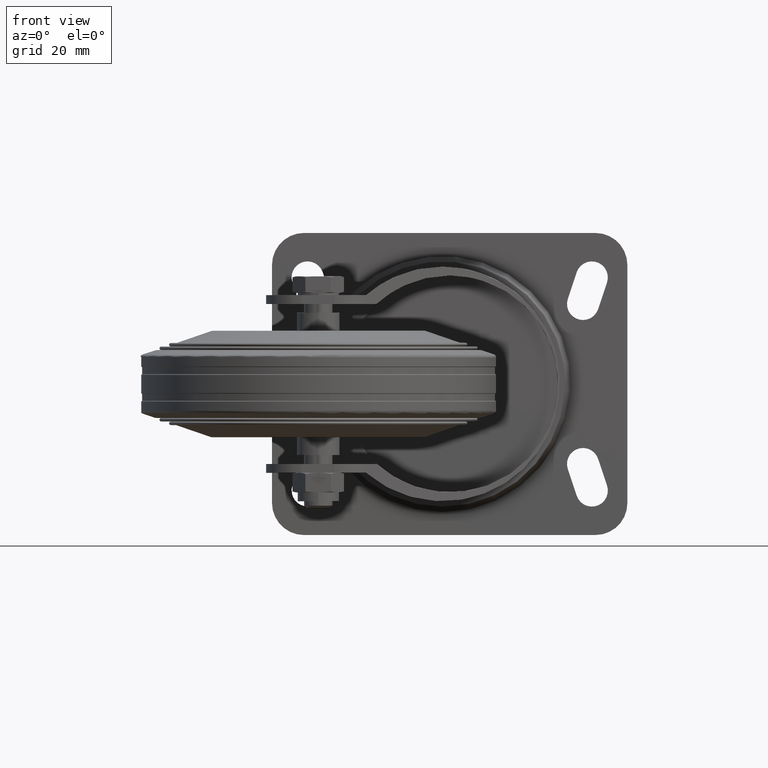
[diagram: clean part render]
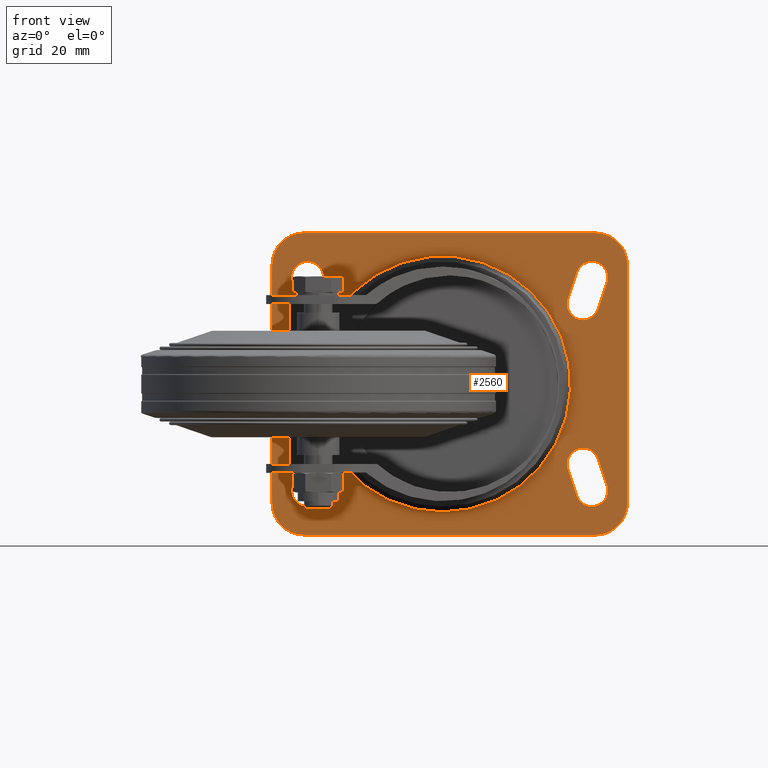
[diagram: same view with one face highlighted and labeled with its STEP entity id]
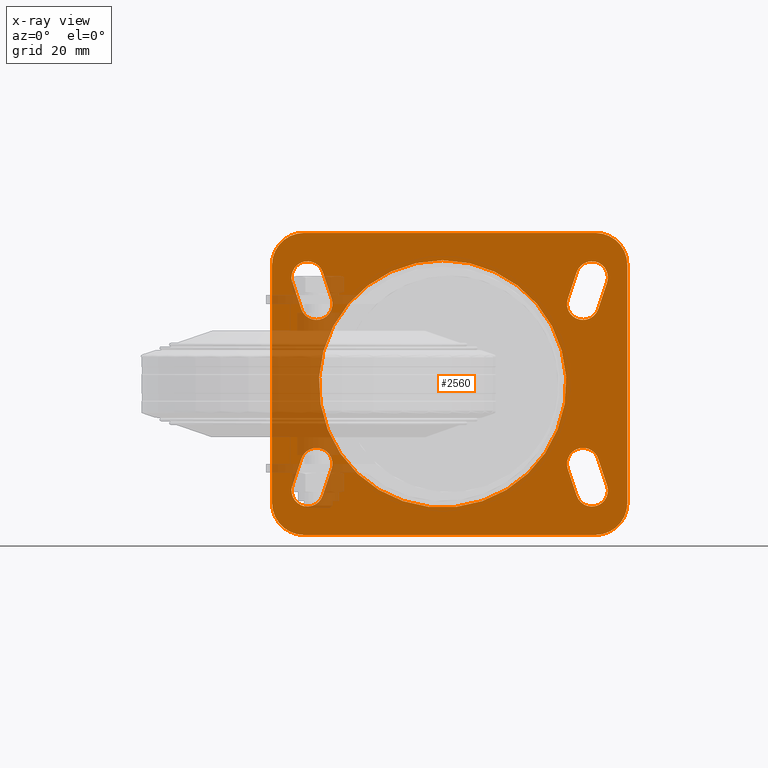
[diagram: x-ray of the same camera — body ghosted, the highlighted face saturated]
A machine part, front view. The second image highlights one B-rep face of the part: STEP entity #2560.
The next image is the same camera in x-ray: the body ghosted, the highlighted face saturated — about 16% of this face is hidden behind the body in this view.
In plain terms, the highlighted planar face has unit normal (0, 1, 0).
Its self-contained STEP definition (entity closure, byte-faithful):
#122=FACE_BOUND('',#779,.T.);
#123=FACE_BOUND('',#780,.T.);
#124=FACE_BOUND('',#781,.T.);
#125=FACE_BOUND('',#782,.T.);
#126=FACE_BOUND('',#783,.T.);
#192=PLANE('',#2923);
#274=LINE('',#4390,#401);
#278=LINE('',#4402,#405);
#282=LINE('',#4414,#409);
#286=LINE('',#4426,#413);
#290=LINE('',#4435,#417);
#294=LINE('',#4447,#421);
#298=LINE('',#4456,#425);
#302=LINE('',#4468,#429);
#306=LINE('',#4477,#433);
#310=LINE('',#4489,#437);
#314=LINE('',#4498,#441);
#318=LINE('',#4510,#445);
#401=VECTOR('',#3420,1000.);
#405=VECTOR('',#3432,1000.);
#409=VECTOR('',#3444,1000.);
#413=VECTOR('',#3456,1000.);
#417=VECTOR('',#3462,1000.);
#421=VECTOR('',#3474,1000.);
#425=VECTOR('',#3480,1000.);
#429=VECTOR('',#3492,1000.);
#433=VECTOR('',#3498,1000.);
#437=VECTOR('',#3510,1000.);
#441=VECTOR('',#3516,1000.);
#445=VECTOR('',#3528,1000.);
#601=FACE_OUTER_BOUND('',#778,.T.);
#778=EDGE_LOOP('',(#2097,#2098,#2099,#2100,#2101,#2102,#2103,#2104));
#779=EDGE_LOOP('',(#2105));
#780=EDGE_LOOP('',(#2106,#2107,#2108,#2109));
#781=EDGE_LOOP('',(#2110,#2111,#2112,#2113));
#782=EDGE_LOOP('',(#2114,#2115,#2116,#2117));
#783=EDGE_LOOP('',(#2118,#2119,#2120,#2121));
#938=CIRCLE('',#2876,9.00000000000001);
#940=CIRCLE('',#2880,9.00000000000003);
#942=CIRCLE('',#2884,9.00000000000004);
#944=CIRCLE('',#2889,4.5);
#946=CIRCLE('',#2894,4.49999999999996);
#948=CIRCLE('',#2899,4.5);
#950=CIRCLE('',#2904,4.5);
#952=CIRCLE('',#2908,4.5);
#954=CIRCLE('',#2911,4.49999999999996);
#957=CIRCLE('',#2916,4.5);
#959=CIRCLE('',#2919,4.5);
#961=CIRCLE('',#2922,9.00000000000001);
#962=CIRCLE('',#2924,34.8);
#1217=VERTEX_POINT('',#4387);
#1218=VERTEX_POINT('',#4389);
#1220=VERTEX_POINT('',#4395);
#1222=VERTEX_POINT('',#4401);
#1224=VERTEX_POINT('',#4407);
#1226=VERTEX_POINT('',#4413);
#1228=VERTEX_POINT('',#4419);
#1230=VERTEX_POINT('',#4425);
#1233=VERTEX_POINT('',#4432);
#1234=VERTEX_POINT('',#4434);
#1236=VERTEX_POINT('',#4440);
#1238=VERTEX_POINT('',#4446);
#1241=VERTEX_POINT('',#4453);
#1242=VERTEX_POINT('',#4455);
#1244=VERTEX_POINT('',#4461);
#1246=VERTEX_POINT('',#4467);
#1249=VERTEX_POINT('',#4474);
#1250=VERTEX_POINT('',#4476);
#1252=VERTEX_POINT('',#4482);
#1254=VERTEX_POINT('',#4488);
#1257=VERTEX_POINT('',#4495);
#1258=VERTEX_POINT('',#4497);
#1260=VERTEX_POINT('',#4503);
#1262=VERTEX_POINT('',#4509);
#1265=VERTEX_POINT('',#4562);
#1501=EDGE_CURVE('',#1217,#1218,#274,.T.);
#1504=EDGE_CURVE('',#1218,#1220,#938,.T.);
#1507=EDGE_CURVE('',#1220,#1222,#278,.T.);
#1510=EDGE_CURVE('',#1222,#1224,#940,.T.);
#1513=EDGE_CURVE('',#1224,#1226,#282,.T.);
#1516=EDGE_CURVE('',#1226,#1228,#942,.T.);
#1519=EDGE_CURVE('',#1228,#1230,#286,.T.);
#1523=EDGE_CURVE('',#1234,#1233,#290,.T.);
#1526=EDGE_CURVE('',#1236,#1234,#944,.T.);
#1529=EDGE_CURVE('',#1238,#1236,#294,.T.);
#1533=EDGE_CURVE('',#1242,#1241,#298,.T.);
#1536=EDGE_CURVE('',#1244,#1242,#946,.T.);
#1539=EDGE_CURVE('',#1246,#1244,#302,.T.);
#1543=EDGE_CURVE('',#1250,#1249,#306,.T.);
#1546=EDGE_CURVE('',#1252,#1250,#948,.T.);
#1549=EDGE_CURVE('',#1254,#1252,#310,.T.);
#1553=EDGE_CURVE('',#1258,#1257,#314,.T.);
#1556=EDGE_CURVE('',#1260,#1258,#950,.T.);
#1559=EDGE_CURVE('',#1262,#1260,#318,.T.);
#1562=EDGE_CURVE('',#1233,#1238,#952,.T.);
#1564=EDGE_CURVE('',#1241,#1246,#954,.T.);
#1570=EDGE_CURVE('',#1249,#1254,#957,.T.);
#1572=EDGE_CURVE('',#1257,#1262,#959,.T.);
#1574=EDGE_CURVE('',#1230,#1217,#961,.T.);
#1575=EDGE_CURVE('',#1265,#1265,#962,.F.);
#2097=ORIENTED_EDGE('',*,*,#1501,.F.);
#2098=ORIENTED_EDGE('',*,*,#1574,.F.);
#2099=ORIENTED_EDGE('',*,*,#1519,.F.);
#2100=ORIENTED_EDGE('',*,*,#1516,.F.);
#2101=ORIENTED_EDGE('',*,*,#1513,.F.);
#2102=ORIENTED_EDGE('',*,*,#1510,.F.);
#2103=ORIENTED_EDGE('',*,*,#1507,.F.);
#2104=ORIENTED_EDGE('',*,*,#1504,.F.);
#2105=ORIENTED_EDGE('',*,*,#1575,.F.);
#2106=ORIENTED_EDGE('',*,*,#1553,.T.);
#2107=ORIENTED_EDGE('',*,*,#1572,.T.);
#2108=ORIENTED_EDGE('',*,*,#1559,.T.);
#2109=ORIENTED_EDGE('',*,*,#1556,.T.);
#2110=ORIENTED_EDGE('',*,*,#1543,.T.);
#2111=ORIENTED_EDGE('',*,*,#1570,.T.);
#2112=ORIENTED_EDGE('',*,*,#1549,.T.);
#2113=ORIENTED_EDGE('',*,*,#1546,.T.);
#2114=ORIENTED_EDGE('',*,*,#1533,.T.);
#2115=ORIENTED_EDGE('',*,*,#1564,.T.);
#2116=ORIENTED_EDGE('',*,*,#1539,.T.);
#2117=ORIENTED_EDGE('',*,*,#1536,.T.);
#2118=ORIENTED_EDGE('',*,*,#1523,.T.);
#2119=ORIENTED_EDGE('',*,*,#1562,.T.);
#2120=ORIENTED_EDGE('',*,*,#1529,.T.);
#2121=ORIENTED_EDGE('',*,*,#1526,.T.);
#2560=ADVANCED_FACE('',(#601,#122,#123,#124,#125,#126),#192,.F.);
#2876=AXIS2_PLACEMENT_3D('',#4396,#3426,#3427);
#2880=AXIS2_PLACEMENT_3D('',#4408,#3438,#3439);
#2884=AXIS2_PLACEMENT_3D('',#4420,#3450,#3451);
#2889=AXIS2_PLACEMENT_3D('',#4441,#3468,#3469);
#2894=AXIS2_PLACEMENT_3D('',#4462,#3486,#3487);
#2899=AXIS2_PLACEMENT_3D('',#4483,#3504,#3505);
#2904=AXIS2_PLACEMENT_3D('',#4504,#3522,#3523);
#2908=AXIS2_PLACEMENT_3D('',#4514,#3534,#3535);
#2911=AXIS2_PLACEMENT_3D('',#4517,#3540,#3541);
#2916=AXIS2_PLACEMENT_3D('',#4554,#3550,#3551);
#2919=AXIS2_PLACEMENT_3D('',#4557,#3556,#3557);
#2922=AXIS2_PLACEMENT_3D('',#4560,#3562,#3563);
#2923=AXIS2_PLACEMENT_3D('',#4561,#3564,#3565);
#2924=AXIS2_PLACEMENT_3D('',#4563,#3566,#3567);
#3420=DIRECTION('',(0.,0.,1.));
#3426=DIRECTION('center_axis',(0.,1.,0.));
#3427=DIRECTION('ref_axis',(1.,0.,0.));
#3432=DIRECTION('',(1.,0.,0.));
#3438=DIRECTION('center_axis',(0.,1.,0.));
#3439=DIRECTION('ref_axis',(1.,0.,0.));
#3444=DIRECTION('',(0.,0.,-1.));
#3450=DIRECTION('center_axis',(0.,1.,0.));
#3451=DIRECTION('ref_axis',(1.,0.,0.));
#3456=DIRECTION('',(-1.,0.,0.));
#3462=DIRECTION('',(-0.316227766016838,0.,0.948683298050514));
#3468=DIRECTION('center_axis',(0.,1.,0.));
#3469=DIRECTION('ref_axis',(1.,0.,0.));
#3474=DIRECTION('',(0.316227766016838,0.,-0.948683298050514));
#3480=DIRECTION('',(-0.316227766016838,0.,-0.948683298050514));
#3486=DIRECTION('center_axis',(0.,1.,0.));
#3487=DIRECTION('ref_axis',(1.,0.,0.));
#3492=DIRECTION('',(0.316227766016838,0.,0.948683298050514));
#3498=DIRECTION('',(-0.316227766016838,0.,-0.948683298050514));
#3504=DIRECTION('center_axis',(0.,1.,0.));
#3505=DIRECTION('ref_axis',(1.,0.,0.));
#3510=DIRECTION('',(0.316227766016838,0.,0.948683298050514));
#3516=DIRECTION('',(-0.316227766016838,0.,0.948683298050514));
#3522=DIRECTION('center_axis',(0.,1.,0.));
#3523=DIRECTION('ref_axis',(1.,0.,0.));
#3528=DIRECTION('',(0.316227766016838,0.,-0.948683298050514));
#3534=DIRECTION('center_axis',(0.,1.,0.));
#3535=DIRECTION('ref_axis',(1.,0.,0.));
#3540=DIRECTION('center_axis',(0.,1.,0.));
#3541=DIRECTION('ref_axis',(1.,0.,0.));
#3550=DIRECTION('center_axis',(0.,1.,0.));
#3551=DIRECTION('ref_axis',(1.,0.,0.));
#3556=DIRECTION('center_axis',(0.,1.,0.));
#3557=DIRECTION('ref_axis',(1.,0.,0.));
#3562=DIRECTION('center_axis',(0.,1.,0.));
#3563=DIRECTION('ref_axis',(1.,0.,0.));
#3564=DIRECTION('center_axis',(0.,1.,0.));
#3565=DIRECTION('ref_axis',(0.,0.,1.));
#3566=DIRECTION('center_axis',(0.,1.,0.));
#3567=DIRECTION('ref_axis',(0.,0.,1.));
#4387=CARTESIAN_POINT('',(-13.,75.5,-33.5));
#4389=CARTESIAN_POINT('',(-13.,75.5,33.5));
#4390=CARTESIAN_POINT('',(-13.,75.5,-33.5));
#4395=CARTESIAN_POINT('',(-4.,75.5,42.5));
#4396=CARTESIAN_POINT('Origin',(-3.99999999999999,75.5,33.5));
#4401=CARTESIAN_POINT('',(78.,75.5,42.5));
#4402=CARTESIAN_POINT('',(-4.,75.5,42.5));
#4407=CARTESIAN_POINT('',(87.,75.5,33.5));
#4408=CARTESIAN_POINT('Origin',(78.,75.5,33.5));
#4413=CARTESIAN_POINT('',(87.,75.5,-33.5));
#4414=CARTESIAN_POINT('',(87.,75.5,33.5));
#4419=CARTESIAN_POINT('',(78.,75.5,-42.5));
#4420=CARTESIAN_POINT('Origin',(78.,75.5,-33.5));
#4425=CARTESIAN_POINT('',(-4.,75.5,-42.5));
#4426=CARTESIAN_POINT('',(78.,75.5,-42.5));
#4432=CARTESIAN_POINT('',(70.2309251587727,75.5,-23.9230249470758));
#4434=CARTESIAN_POINT('',(72.7309251587727,75.5,-31.4230249470758));
#4435=CARTESIAN_POINT('',(72.7309251587727,75.5,-31.4230249470758));
#4440=CARTESIAN_POINT('',(81.2690748412273,75.5,-28.5769750529242));
#4441=CARTESIAN_POINT('Origin',(77.,75.5,-30.));
#4446=CARTESIAN_POINT('',(78.7690748412273,75.5,-21.0769750529242));
#4447=CARTESIAN_POINT('',(78.7690748412273,75.5,-21.0769750529242));
#4453=CARTESIAN_POINT('',(78.7690748412273,75.5,21.0769750529242));
#4455=CARTESIAN_POINT('',(81.2690748412273,75.5,28.5769750529243));
#4456=CARTESIAN_POINT('',(81.2690748412273,75.5,28.5769750529242));
#4461=CARTESIAN_POINT('',(72.7309251587727,75.5,31.4230249470758));
#4462=CARTESIAN_POINT('Origin',(77.,75.5,30.));
#4467=CARTESIAN_POINT('',(70.2309251587727,75.5,23.9230249470758));
#4468=CARTESIAN_POINT('',(70.2309251587727,75.5,23.9230249470758));
#4474=CARTESIAN_POINT('',(1.26907484122731,75.5,-31.4230249470758));
#4476=CARTESIAN_POINT('',(3.76907484122731,75.5,-23.9230249470758));
#4477=CARTESIAN_POINT('',(3.76907484122731,75.5,-23.9230249470758));
#4482=CARTESIAN_POINT('',(-4.76907484122731,75.5,-21.0769750529242));
#4483=CARTESIAN_POINT('Origin',(-0.50000005654593,75.5,-22.5000001696378));
#4488=CARTESIAN_POINT('',(-7.26907484122731,75.5,-28.5769750529242));
#4489=CARTESIAN_POINT('',(-7.26907484122731,75.5,-28.5769750529242));
#4495=CARTESIAN_POINT('',(-7.26907484122731,75.5,28.5769750529242));
#4497=CARTESIAN_POINT('',(-4.76907484122731,75.5,21.0769750529242));
#4498=CARTESIAN_POINT('',(-4.76907484122731,75.5,21.0769750529242));
#4503=CARTESIAN_POINT('',(3.76907484122731,75.5,23.9230249470758));
#4504=CARTESIAN_POINT('Origin',(-0.50000006251388,75.5,22.5000001875416));
#4509=CARTESIAN_POINT('',(1.26907484122731,75.5,31.4230249470758));
#4510=CARTESIAN_POINT('',(1.26907484122731,75.5,31.4230249470758));
#4514=CARTESIAN_POINT('Origin',(74.5,75.5,-22.5));
#4517=CARTESIAN_POINT('Origin',(74.5,75.5,22.5));
#4554=CARTESIAN_POINT('Origin',(-3.,75.5,-30.));
#4557=CARTESIAN_POINT('Origin',(-3.,75.5,30.));
#4560=CARTESIAN_POINT('Origin',(-3.99999999999999,75.5,-33.5));
#4561=CARTESIAN_POINT('Origin',(-3.99999999999999,75.5,33.5));
#4562=CARTESIAN_POINT('',(35.,75.5,34.8));
#4563=CARTESIAN_POINT('Origin',(35.,75.5,0.));